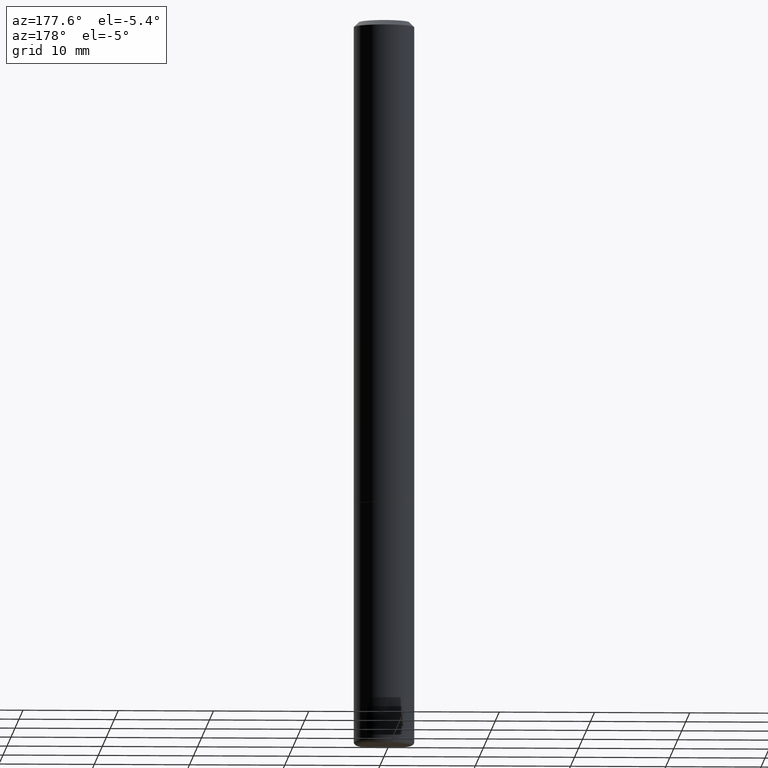
[diagram: clean part render]
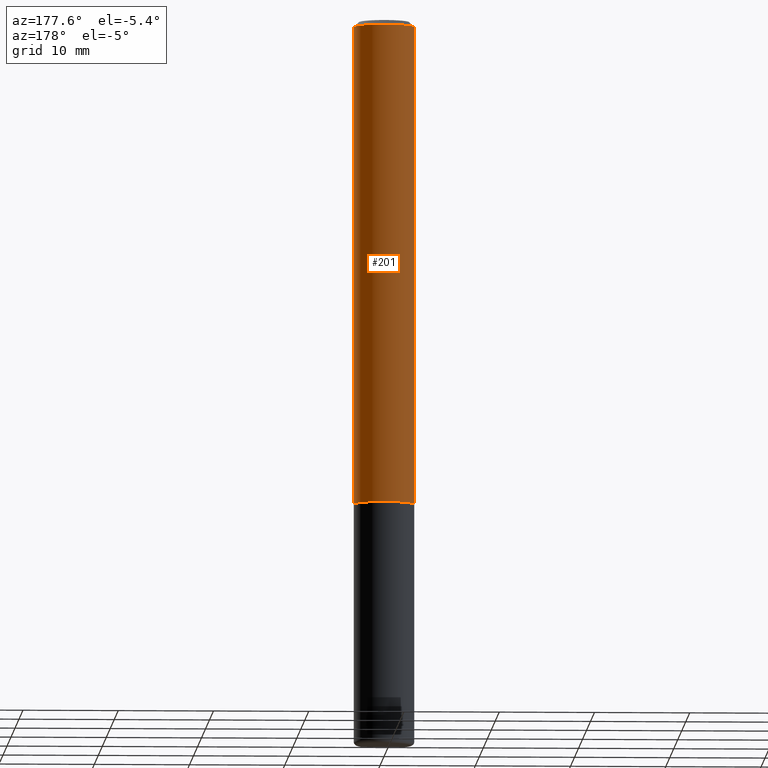
[diagram: same view with one face highlighted and labeled with its STEP entity id]
A machine part, auxiliary view. The second image highlights one B-rep face of the part: STEP entity #201.
In plain terms, the highlighted cylindrical surface (edge-blend (fillet) strip) has radius 3.175 mm, axis along (-0, 0, 1).
Its self-contained STEP definition (entity closure, byte-faithful):
#4 = CARTESIAN_POINT ( 'NONE',  ( -0.1249999999999999584, 8.030407079339200406E-16, -0.02000000000000006287 ) ) ;
#5 = CARTESIAN_POINT ( 'NONE',  ( 4.890937612370288923E-31, -6.982962677686312563E-17, -0.02000000000000006287 ) ) ;
#23 = LINE ( 'NONE', #155, #53 ) ;
#36 = AXIS2_PLACEMENT_3D ( 'NONE', #236, #221, #229 ) ;
#40 = FACE_OUTER_BOUND ( 'NONE', #182, .T. ) ;
#47 = DIRECTION ( 'NONE',  ( 1.000000000000000000, -6.982962677686267499E-15, 0.000000000000000000 ) ) ;
#53 = VECTOR ( 'NONE', #411, 39.37007874015748143 ) ;
#75 = DIRECTION ( 'NONE',  ( 1.000000000000000000, -6.982962677686264344E-15, 0.000000000000000000 ) ) ;
#78 = DIRECTION ( 'NONE',  ( -2.445468806185136597E-29, 3.491481338843145583E-15, 1.000000000000000000 ) ) ;
#82 = VECTOR ( 'NONE', #237, 39.37007874015748143 ) ;
#83 = AXIS2_PLACEMENT_3D ( 'NONE', #202, #78, #75 ) ;
#99 = VERTEX_POINT ( 'NONE', #108 ) ;
#108 = CARTESIAN_POINT ( 'NONE',  ( 0.1249999999999999584, -9.273918764983043491E-16, -0.02000000000000006287 ) ) ;
#115 = VERTEX_POINT ( 'NONE', #190 ) ;
#141 = CIRCLE ( 'NONE', #185, 0.1249999999999999584 ) ;
#155 = CARTESIAN_POINT ( 'NONE',  ( -0.1250000000000001110, 8.881784197001260212E-16, -6.148668862818637832E-30 ) ) ;
#157 = ORIENTED_EDGE ( 'NONE', *, *, #336, .F. ) ;
#161 = EDGE_CURVE ( 'NONE', #99, #251, #141, .T. ) ;
#182 = EDGE_LOOP ( 'NONE', ( #275, #312, #377, #157 ) ) ;
#185 = AXIS2_PLACEMENT_3D ( 'NONE', #5, #257, #47 ) ;
#190 = CARTESIAN_POINT ( 'NONE',  ( -0.1250000000000002776, -2.636471991862024185E-15, -1.999000000000000110 ) ) ;
#201 = ADVANCED_FACE ( 'NONE', ( #40 ), #264, .T. ) ;
#202 = CARTESIAN_POINT ( 'NONE',  ( 4.888492143564088712E-29, -6.979471196347448158E-15, -1.999000000000000110 ) ) ;
#221 = DIRECTION ( 'NONE',  ( -2.445468806185136597E-29, 3.491481338843145583E-15, 1.000000000000000000 ) ) ;
#226 = CARTESIAN_POINT ( 'NONE',  ( 0.1250000000000001110, -8.728703347107841277E-16, 6.095220969744924646E-30 ) ) ;
#229 = DIRECTION ( 'NONE',  ( 1.000000000000000000, -6.982962677686266711E-15, 4.876176775795935232E-29 ) ) ;
#236 = CARTESIAN_POINT ( 'NONE',  ( 0.000000000000000000, 0.000000000000000000, 0.000000000000000000 ) ) ;
#237 = DIRECTION ( 'NONE',  ( -2.445468806185136877E-29, 3.491481338843145188E-15, 1.000000000000000000 ) ) ;
#251 = VERTEX_POINT ( 'NONE', #4 ) ;
#256 = LINE ( 'NONE', #226, #82 ) ;
#257 = DIRECTION ( 'NONE',  ( -2.445468806185136597E-29, 3.491481338843145583E-15, 1.000000000000000000 ) ) ;
#263 = CIRCLE ( 'NONE', #83, 0.1250000000000002498 ) ;
#264 = CYLINDRICAL_SURFACE ( 'NONE', #36, 0.1250000000000001110 ) ;
#275 = ORIENTED_EDGE ( 'NONE', *, *, #298, .T. ) ;
#298 = EDGE_CURVE ( 'NONE', #320, #115, #263, .T. ) ;
#312 = ORIENTED_EDGE ( 'NONE', *, *, #353, .T. ) ;
#320 = VERTEX_POINT ( 'NONE', #395 ) ;
#336 = EDGE_CURVE ( 'NONE', #320, #99, #256, .T. ) ;
#353 = EDGE_CURVE ( 'NONE', #115, #251, #23, .T. ) ;
#377 = ORIENTED_EDGE ( 'NONE', *, *, #161, .F. ) ;
#395 = CARTESIAN_POINT ( 'NONE',  ( 0.1250000000000002498, -7.852341531058233864E-15, -1.999000000000000110 ) ) ;
#411 = DIRECTION ( 'NONE',  ( -2.445468806185136877E-29, 3.491481338843145188E-15, 1.000000000000000000 ) ) ;